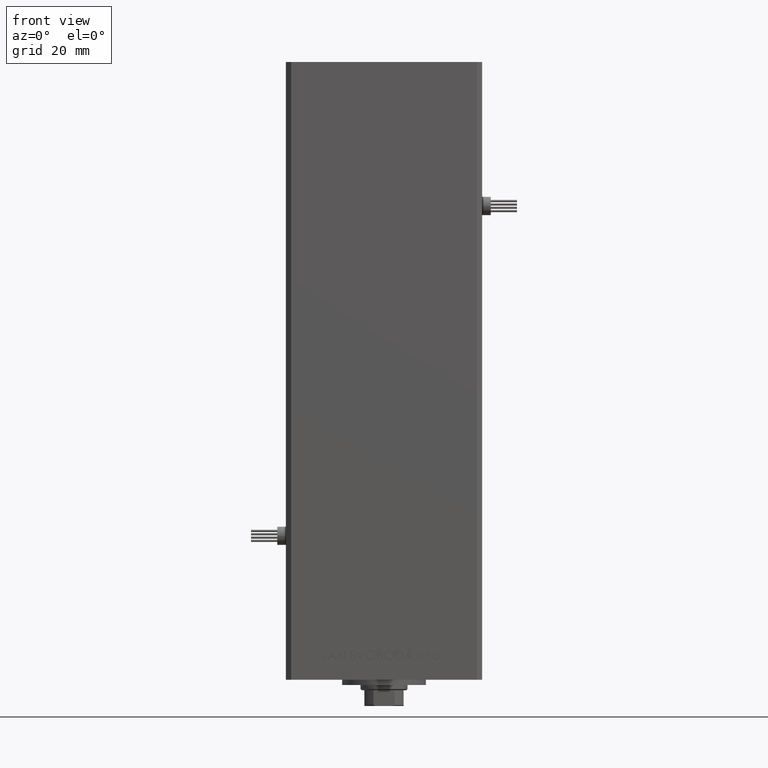
[diagram: clean part render]
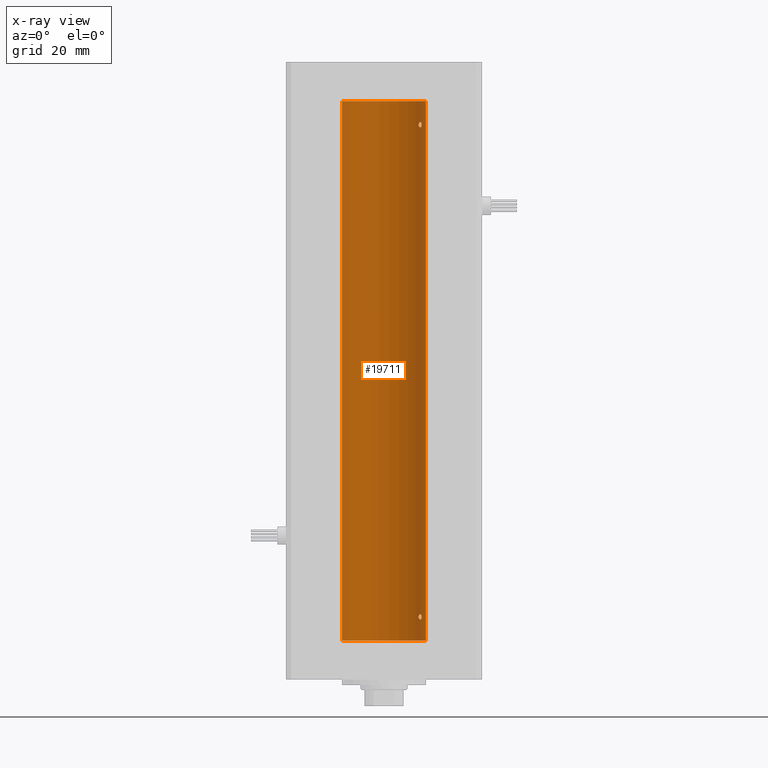
[diagram: x-ray — body ghosted, one internal face saturated and labeled with its STEP entity id]
A machine part, front view, then the same camera in x-ray: the body is ghosted and one INTERNAL B-rep face — a face not visible from any outside direction — is saturated and labeled: STEP entity #19711.
In plain terms, the highlighted cylindrical surface (partial cylindrical patch) has radius 16 mm, axis along (-0, -0, -1).
Its self-contained STEP definition (entity closure, byte-faithful):
#87 = FACE_BOUND ( 'NONE', #34283, .T. ) ;
#1039 = CARTESIAN_POINT ( 'NONE',  ( 13.55739033881265065, 8.499771822136686694, 9.902983336413296200 ) ) ;
#1291 = CARTESIAN_POINT ( 'NONE',  ( 16.00000000000000000, 1.959434878635765131E-15, 206.0000000000000000 ) ) ;
#1812 = CARTESIAN_POINT ( 'NONE',  ( 14.31678893103186390, 7.143775209822729622, 9.534780048070684799 ) ) ;
#2009 = CARTESIAN_POINT ( 'NONE',  ( 13.22875655532295092, 8.999999999999994671, 197.1426595155012365 ) ) ;
#2086 = CARTESIAN_POINT ( 'NONE',  ( 0.000000000000000000, 0.000000000000000000, 206.0000000000000000 ) ) ;
#2145 = CARTESIAN_POINT ( 'NONE',  ( 13.25010819131475159, 8.968783812673564171, 8.717198662283735189 ) ) ;
#2539 = CARTESIAN_POINT ( 'NONE',  ( 13.98799506618805211, 7.768796316246563194, 196.0189078186198515 ) ) ;
#2810 = CARTESIAN_POINT ( 'NONE',  ( 13.49787029139622696, 8.591848682073997878, 196.1838145871425638 ) ) ;
#4263 = B_SPLINE_CURVE_WITH_KNOTS ( 'NONE', 3,
 ( #5998, #42463, #38750, #22886, #22116, #2810, #18670, #6514, #22368, #18152, #2539, #30058, #17900, #6780, #18939, #30320, #46704, #46443, #10228, #9973 ),
 .UNSPECIFIED., .F., .F.,
 ( 4, 2, 2, 2, 2, 2, 2, 2, 2, 4 ),
 ( 2.818592028051833686E-17, 0.0004221896201403299359, 0.0008443792402806316825, 0.001266568860420933538, 0.001688758480561235176, 0.002110948100701536597, 0.002533137720841838886, 0.002955327340982140307, 0.003166422151052290801, 0.003377516961122441295 ),
 .UNSPECIFIED. ) ;
#4892 = ORIENTED_EDGE ( 'NONE', *, *, #26428, .F. ) ;
#5803 = DIRECTION ( 'NONE',  ( -0.000000000000000000, 0.000000000000000000, 1.000000000000000000 ) ) ;
#5998 = CARTESIAN_POINT ( 'NONE',  ( 13.22875655532295447, 8.999999999999996447, 196.9999999999999432 ) ) ;
#6028 = CARTESIAN_POINT ( 'NONE',  ( -16.00000000000000000, 0.000000000000000000, 206.0000000000000000 ) ) ;
#6241 = CARTESIAN_POINT ( 'NONE',  ( 13.25022586032983618, 8.968609469449805971, 197.2832896389629127 ) ) ;
#6514 = CARTESIAN_POINT ( 'NONE',  ( 13.70633586603035781, 8.255576010093792050, 196.0253286105014752 ) ) ;
#6763 = CARTESIAN_POINT ( 'NONE',  ( 13.70635209652259334, 8.259251269739747769, 197.9961002086728001 ) ) ;
#6780 = CARTESIAN_POINT ( 'NONE',  ( 14.27574973237574874, 7.225997637813491359, 196.3530782107463324 ) ) ;
#6788 = CARTESIAN_POINT ( 'NONE',  ( 16.00000000000000000, 1.959434878635765131E-15, 206.0000000000000000 ) ) ;
#7712 = VECTOR ( 'NONE', #14495, 1000.000000000000000 ) ;
#8315 = DIRECTION ( 'NONE',  ( -1.000000000000000000, 0.000000000000000000, 0.000000000000000000 ) ) ;
#9699 = CARTESIAN_POINT ( 'NONE',  ( 14.37260515874679179, 7.030802976542521954, 197.2824317985810865 ) ) ;
#9760 = CARTESIAN_POINT ( 'NONE',  ( 13.22875655532295625, 9.000000000000000000, 9.142659515501296852 ) ) ;
#9973 = CARTESIAN_POINT ( 'NONE',  ( 14.38749456993875775, 6.999999999998771649, 196.9999999999994600 ) ) ;
#10228 = CARTESIAN_POINT ( 'NONE',  ( 14.38749456993829057, 7.000000000000029310, 196.9292911095188003 ) ) ;
#10350 = CARTESIAN_POINT ( 'NONE',  ( 13.56526576050683452, 8.485384079562178883, 8.116990538131117816 ) ) ;
#11272 = B_SPLINE_CURVE_WITH_KNOTS ( 'NONE', 3,
 ( #51057, #38878, #2145, #26729, #26470, #47090, #10350, #50270, #46307, #17766, #30700, #29926, #50013, #18796, #37852, #30960, #13803, #38615, #21983, #18533 ),
 .UNSPECIFIED., .F., .F.,
 ( 4, 2, 2, 2, 2, 2, 2, 2, 2, 4 ),
 ( 0.000000000000000000, 0.0004221896201403055413, 0.0008443792402806110826, 0.001266568860420916624, 0.001688758480561222165, 0.002110948100701527490, 0.002533137720841833248, 0.002955327340982138572, 0.003166422151052288633, 0.003377516961122438259 ),
 .UNSPECIFIED. ) ;
#11474 = CYLINDRICAL_SURFACE ( 'NONE', #14911, 16.00000000000000000 ) ;
#12099 = VERTEX_POINT ( 'NONE', #46094 ) ;
#12255 = CARTESIAN_POINT ( 'NONE',  ( 14.38749456993835807, 6.999999999999894307, 9.141106977037484427 ) ) ;
#12932 = ORIENTED_EDGE ( 'NONE', *, *, #30376, .F. ) ;
#13761 = DIRECTION ( 'NONE',  ( 1.000000000000000000, 0.000000000000000000, 0.000000000000000000 ) ) ;
#13803 = CARTESIAN_POINT ( 'NONE',  ( 14.36932461189096877, 7.037242368448794139, 8.720713977669424466 ) ) ;
#13818 = EDGE_CURVE ( 'NONE', #14650, #38522, #50636, .T. ) ;
#14009 = CARTESIAN_POINT ( 'NONE',  ( 0.000000000000000000, 0.000000000000000000, 0.000000000000000000 ) ) ;
#14495 = DIRECTION ( 'NONE',  ( -0.000000000000000000, -0.000000000000000000, -1.000000000000000000 ) ) ;
#14650 = VERTEX_POINT ( 'NONE', #38746 ) ;
#14911 = AXIS2_PLACEMENT_3D ( 'NONE', #40026, #51937, #8315 ) ;
#16216 = CARTESIAN_POINT ( 'NONE',  ( 13.98853479819183043, 7.771757428685174496, 10.00365939203466681 ) ) ;
#17766 = CARTESIAN_POINT ( 'NONE',  ( 13.92009581174526822, 7.889943515799717311, 7.998460909213807035 ) ) ;
#17900 = CARTESIAN_POINT ( 'NONE',  ( 14.17516445690067250, 7.421373518623910037, 196.1736956655493884 ) ) ;
#18152 = CARTESIAN_POINT ( 'NONE',  ( 13.92009581174527355, 7.889943515799701323, 195.9984609092137759 ) ) ;
#18198 = EDGE_CURVE ( 'NONE', #39522, #12099, #51060, .T. ) ;
#18392 = CARTESIAN_POINT ( 'NONE',  ( 13.32447566991143617, 8.857922402414489582, 197.5314381199037541 ) ) ;
#18442 = CIRCLE ( 'NONE', #36218, 16.00000000000000000 ) ;
#18533 = CARTESIAN_POINT ( 'NONE',  ( 14.38749456993875953, 6.999999999998769873, 8.999999999999467093 ) ) ;
#18670 = CARTESIAN_POINT ( 'NONE',  ( 13.56526576050684518, 8.485384079562161119, 196.1169905381311196 ) ) ;
#18796 = CARTESIAN_POINT ( 'NONE',  ( 14.27574973237574696, 7.225997637813494023, 8.353078210746339494 ) ) ;
#18939 = CARTESIAN_POINT ( 'NONE',  ( 14.31615587311060978, 7.145052533203036127, 196.4626987052745903 ) ) ;
#19069 = EDGE_CURVE ( 'NONE', #12099, #39522, #11272, .T. ) ;
#19711 = ADVANCED_FACE ( 'NONE', ( #32099, #47696, #87 ), #11474, .F. ) ;
#19768 = ORIENTED_EDGE ( 'NONE', *, *, #45061, .F. ) ;
#21855 = CARTESIAN_POINT ( 'NONE',  ( 14.12440581436492515, 7.519967855344591001, 197.9168456675479604 ) ) ;
#21925 = DIRECTION ( 'NONE',  ( 1.000000000000000000, 0.000000000000000000, 0.000000000000000000 ) ) ;
#21983 = CARTESIAN_POINT ( 'NONE',  ( 14.38749456993828879, 7.000000000000026645, 8.929291109518763037 ) ) ;
#22097 = CARTESIAN_POINT ( 'NONE',  ( 13.22875655532295447, 8.999999999999996447, 196.9999999999999432 ) ) ;
#22116 = CARTESIAN_POINT ( 'NONE',  ( 13.37714181818050641, 8.778635597591444295, 196.3595547667462711 ) ) ;
#22161 = CARTESIAN_POINT ( 'NONE',  ( 14.12440581436493225, 7.519967855344579455, 9.916845667547992349 ) ) ;
#22163 = LINE ( 'NONE', #46232, #7712 ) ;
#22230 = EDGE_LOOP ( 'NONE', ( #19768, #26964 ) ) ;
#22353 = CARTESIAN_POINT ( 'NONE',  ( 14.38749456993835807, 6.999999999999900524, 197.1411069770375093 ) ) ;
#22368 = CARTESIAN_POINT ( 'NONE',  ( 13.77746685470184929, 8.136441676695655545, 196.0017131429554524 ) ) ;
#22607 = CARTESIAN_POINT ( 'NONE',  ( 14.31678893103185679, 7.143775209822727845, 197.5347800480706155 ) ) ;
#22886 = CARTESIAN_POINT ( 'NONE',  ( 13.32443414199769194, 8.857985377928093484, 196.4686058303161076 ) ) ;
#26131 = CARTESIAN_POINT ( 'NONE',  ( 14.37260515874679534, 7.030802976542521954, 9.282431798581109561 ) ) ;
#26428 = EDGE_CURVE ( 'NONE', #35970, #34358, #18442, .T. ) ;
#26470 = CARTESIAN_POINT ( 'NONE',  ( 13.37714181818049575, 8.778635597591465611, 8.359554766746297716 ) ) ;
#26688 = ORIENTED_EDGE ( 'NONE', *, *, #46416, .T. ) ;
#26729 = CARTESIAN_POINT ( 'NONE',  ( 13.32443414199768839, 8.857985377928104143, 8.468605830316136007 ) ) ;
#26964 = ORIENTED_EDGE ( 'NONE', *, *, #13818, .F. ) ;
#27334 = CARTESIAN_POINT ( 'NONE',  ( 16.00000000000000000, 1.959434878635765131E-15, 0.000000000000000000 ) ) ;
#27969 = AXIS2_PLACEMENT_3D ( 'NONE', #2086, #5803, #21925 ) ;
#29048 = ORIENTED_EDGE ( 'NONE', *, *, #18198, .F. ) ;
#29350 = VERTEX_POINT ( 'NONE', #6028 ) ;
#29846 = CARTESIAN_POINT ( 'NONE',  ( 14.38749456993875953, 6.999999999998769873, 8.999999999999467093 ) ) ;
#29926 = CARTESIAN_POINT ( 'NONE',  ( 14.11701305531884287, 7.531808851198022126, 8.107366783090686368 ) ) ;
#30058 = CARTESIAN_POINT ( 'NONE',  ( 14.11701305531884465, 7.531808851198014132, 196.1073667830906402 ) ) ;
#30320 = CARTESIAN_POINT ( 'NONE',  ( 14.35867515080208712, 7.058999333127631282, 196.6544211985381594 ) ) ;
#30376 = EDGE_CURVE ( 'NONE', #37072, #35970, #37513, .T. ) ;
#30700 = CARTESIAN_POINT ( 'NONE',  ( 13.98799506618804855, 7.768796316246572964, 8.018907818619863903 ) ) ;
#30720 = CARTESIAN_POINT ( 'NONE',  ( -16.00000000000000000, 0.000000000000000000, 0.000000000000000000 ) ) ;
#30960 = CARTESIAN_POINT ( 'NONE',  ( 14.35867515080208356, 7.058999333127636611, 8.654421198538130966 ) ) ;
#32099 = FACE_OUTER_BOUND ( 'NONE', #46606, .T. ) ;
#32341 = CARTESIAN_POINT ( 'NONE',  ( 13.70635209652260222, 8.259251269739738888, 9.996100208672867637 ) ) ;
#33554 = CARTESIAN_POINT ( 'NONE',  ( 13.32447566991143439, 8.857922402414480700, 9.531438119903825168 ) ) ;
#34065 = CARTESIAN_POINT ( 'NONE',  ( 13.25022586032984329, 8.968609469449802418, 9.283289638962903823 ) ) ;
#34283 = EDGE_LOOP ( 'NONE', ( #47288, #29048 ) ) ;
#34358 = VERTEX_POINT ( 'NONE', #30720 ) ;
#34775 = CARTESIAN_POINT ( 'NONE',  ( 13.37722806521492203, 8.778496895713763237, 197.6404922157021247 ) ) ;
#35970 = VERTEX_POINT ( 'NONE', #27334 ) ;
#36218 = AXIS2_PLACEMENT_3D ( 'NONE', #14009, #42279, #13761 ) ;
#37072 = VERTEX_POINT ( 'NONE', #6788 ) ;
#37120 = CARTESIAN_POINT ( 'NONE',  ( 13.22875655532295447, 8.999999999999996447, 196.9999999999999432 ) ) ;
#37513 = LINE ( 'NONE', #1291, #47864 ) ;
#37852 = CARTESIAN_POINT ( 'NONE',  ( 14.31615587311060445, 7.145052533203043232, 8.462698705274526390 ) ) ;
#38522 = VERTEX_POINT ( 'NONE', #37120 ) ;
#38615 = CARTESIAN_POINT ( 'NONE',  ( 14.38374727663542707, 7.007716049903074840, 8.857607929436484895 ) ) ;
#38733 = CARTESIAN_POINT ( 'NONE',  ( 14.27601081693604179, 7.225489892961972416, 197.6464466749832525 ) ) ;
#38746 = CARTESIAN_POINT ( 'NONE',  ( 14.38749456993875775, 6.999999999998771649, 196.9999999999994600 ) ) ;
#38750 = CARTESIAN_POINT ( 'NONE',  ( 13.25010819131476048, 8.968783812673557065, 196.7171986622837210 ) ) ;
#38878 = CARTESIAN_POINT ( 'NONE',  ( 13.22875655532296157, 9.000000000000000000, 8.857026260935734641 ) ) ;
#39522 = VERTEX_POINT ( 'NONE', #47134 ) ;
#40026 = CARTESIAN_POINT ( 'NONE',  ( 0.000000000000000000, 0.000000000000000000, 206.0000000000000000 ) ) ;
#42188 = CARTESIAN_POINT ( 'NONE',  ( 13.55739033881264710, 8.499771822136690247, 197.9029833364132855 ) ) ;
#42279 = DIRECTION ( 'NONE',  ( -0.000000000000000000, 0.000000000000000000, 1.000000000000000000 ) ) ;
#42463 = CARTESIAN_POINT ( 'NONE',  ( 13.22875655532295802, 8.999999999999998224, 196.8570262609357258 ) ) ;
#43600 = EDGE_CURVE ( 'NONE', #29350, #34358, #22163, .T. ) ;
#44495 = CARTESIAN_POINT ( 'NONE',  ( 13.37722806521492025, 8.778496895713756132, 9.640492215702138878 ) ) ;
#45061 = EDGE_CURVE ( 'NONE', #38522, #14650, #4263, .T. ) ;
#45977 = CARTESIAN_POINT ( 'NONE',  ( 14.27601081693604712, 7.225489892961965310, 9.646446674983275571 ) ) ;
#46094 = CARTESIAN_POINT ( 'NONE',  ( 13.22875655532295447, 8.999999999999998224, 8.999999999999994671 ) ) ;
#46167 = CARTESIAN_POINT ( 'NONE',  ( 13.98853479819182866, 7.771757428685186042, 198.0036593920346775 ) ) ;
#46232 = CARTESIAN_POINT ( 'NONE',  ( -16.00000000000000000, 0.000000000000000000, 206.0000000000000000 ) ) ;
#46307 = CARTESIAN_POINT ( 'NONE',  ( 13.77746685470184040, 8.136441676695669756, 8.001713142955473757 ) ) ;
#46416 = EDGE_CURVE ( 'NONE', #37072, #29350, #50729, .T. ) ;
#46443 = CARTESIAN_POINT ( 'NONE',  ( 14.38374727663542707, 7.007716049903077504, 196.8576079294364547 ) ) ;
#46606 = EDGE_LOOP ( 'NONE', ( #12932, #26688, #49135, #4892 ) ) ;
#46687 = CARTESIAN_POINT ( 'NONE',  ( 14.38749456993875775, 6.999999999998771649, 196.9999999999994600 ) ) ;
#46704 = CARTESIAN_POINT ( 'NONE',  ( 14.36932461189096877, 7.037242368448795915, 196.7207139776694191 ) ) ;
#47090 = CARTESIAN_POINT ( 'NONE',  ( 13.49787029139620920, 8.591848682074017418, 8.183814587142569152 ) ) ;
#47134 = CARTESIAN_POINT ( 'NONE',  ( 14.38749456993875953, 6.999999999998769873, 8.999999999999467093 ) ) ;
#47288 = ORIENTED_EDGE ( 'NONE', *, *, #19069, .F. ) ;
#47696 = FACE_BOUND ( 'NONE', #22230, .T. ) ;
#47864 = VECTOR ( 'NONE', #49426, 1000.000000000000000 ) ;
#49135 = ORIENTED_EDGE ( 'NONE', *, *, #43600, .T. ) ;
#49426 = DIRECTION ( 'NONE',  ( -0.000000000000000000, -0.000000000000000000, -1.000000000000000000 ) ) ;
#50013 = CARTESIAN_POINT ( 'NONE',  ( 14.17516445690067428, 7.421373518623910037, 8.173695665549439937 ) ) ;
#50192 = CARTESIAN_POINT ( 'NONE',  ( 13.22875655532295447, 8.999999999999998224, 8.999999999999994671 ) ) ;
#50270 = CARTESIAN_POINT ( 'NONE',  ( 13.70633586603034715, 8.255576010093811590, 8.025328610501505366 ) ) ;
#50636 = B_SPLINE_CURVE_WITH_KNOTS ( 'NONE', 3,
 ( #46687, #22353, #9699, #22607, #38733, #21855, #46167, #6763, #42188, #34775, #18392, #6241, #2009, #22097 ),
 .UNSPECIFIED., .F., .F.,
 ( 4, 2, 2, 2, 2, 2, 4 ),
 ( 0.003377516961122441295, 0.003798778705083836419, 0.004220040449045231977, 0.005062563936968072532, 0.005905087424890913088, 0.006326349168852335100, 0.006747610912813756245 ),
 .UNSPECIFIED. ) ;
#50729 = CIRCLE ( 'NONE', #27969, 16.00000000000000000 ) ;
#51057 = CARTESIAN_POINT ( 'NONE',  ( 13.22875655532295447, 8.999999999999998224, 8.999999999999994671 ) ) ;
#51060 = B_SPLINE_CURVE_WITH_KNOTS ( 'NONE', 3,
 ( #29846, #12255, #26131, #1812, #45977, #22161, #16216, #32341, #1039, #44495, #33554, #34065, #9760, #50192 ),
 .UNSPECIFIED., .F., .F.,
 ( 4, 2, 2, 2, 2, 2, 4 ),
 ( 0.003377516961122438259, 0.003798778705083848996, 0.004220040449045259733, 0.005062563936968083808, 0.005905087424890908751, 0.006326349168852319488, 0.006747610912813730225 ),
 .UNSPECIFIED. ) ;
#51937 = DIRECTION ( 'NONE',  ( -0.000000000000000000, -0.000000000000000000, -1.000000000000000000 ) ) ;